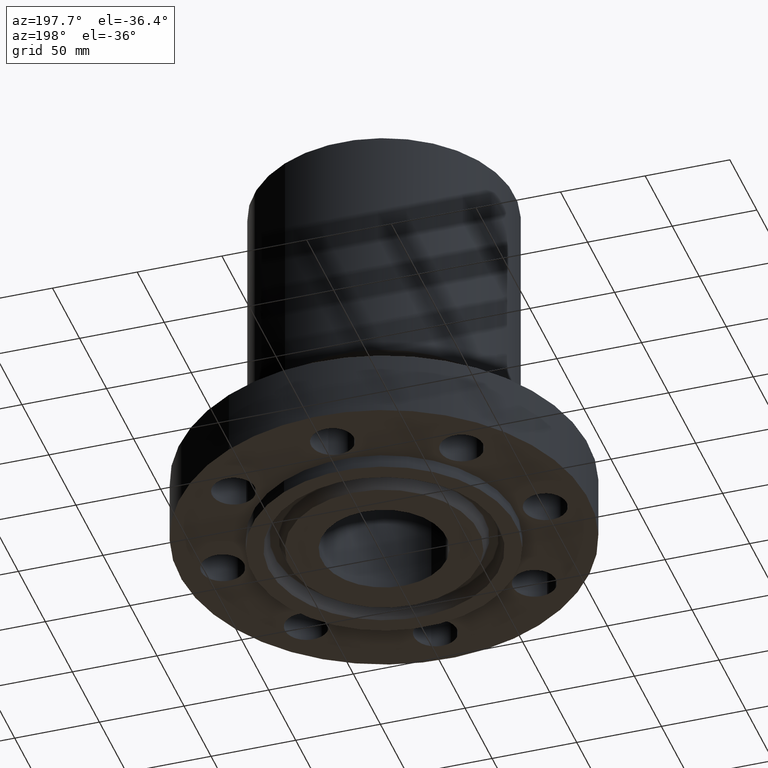
[diagram: clean part render]
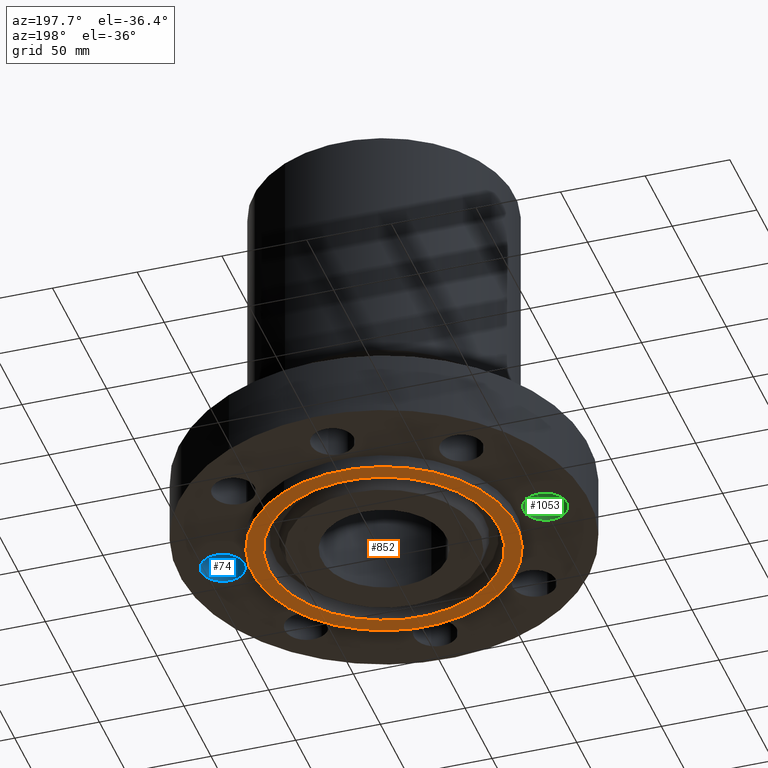
[diagram: same view with three faces highlighted in distinct colors, each labeled with its STEP entity id]
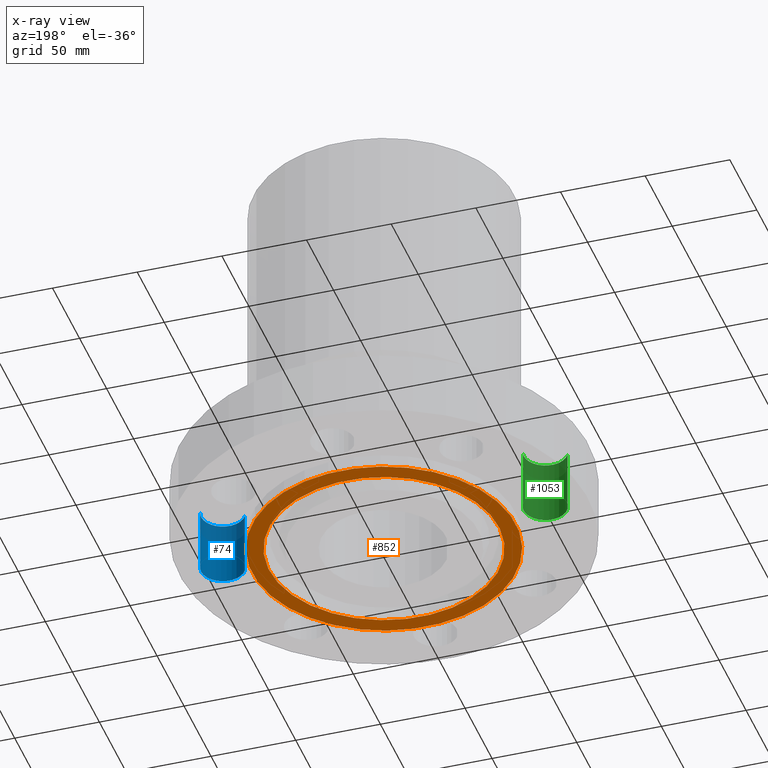
[diagram: x-ray of the same camera — body ghosted, the three highlighted faces saturated]
A machine part, auxiliary view with three faces highlighted in distinct colors.
The next image is the same camera in x-ray (body ghosted, the three faces saturated) — at least one of them is partly hidden behind the body in this view.
Their STEP definitions:

[orange] entity #852 — the highlighted planar face has unit normal (0, 0, -1).
#610=AXIS2_PLACEMENT_3D('Plane Axis2P3D',#607,#608,#609) ;
#801=AXIS2_PLACEMENT_3D('Circle Axis2P3D',#799,#800,$) ;
#820=AXIS2_PLACEMENT_3D('Circle Axis2P3D',#818,#819,$) ;
#832=AXIS2_PLACEMENT_3D('Circle Axis2P3D',#830,#831,$) ;
#841=AXIS2_PLACEMENT_3D('Circle Axis2P3D',#839,#840,$) ;
#607=CARTESIAN_POINT('Axis2P3D Location',(0.,2.20300000001,-0.313000000001)) ;
#796=CARTESIAN_POINT('Vertex',(-1.28102503916,-2.34490060538,-0.313000000001)) ;
#799=CARTESIAN_POINT('Axis2P3D Location',(0.,0.,-0.313000000001)) ;
#803=CARTESIAN_POINT('Vertex',(1.28102503916,2.34490060538,-0.313000000001)) ;
#818=CARTESIAN_POINT('Axis2P3D Location',(0.,0.,-0.313000000001)) ;
#830=CARTESIAN_POINT('Axis2P3D Location',(0.,0.,-0.313000000001)) ;
#834=CARTESIAN_POINT('Vertex',(-1.46824071198,-2.6875965958,-0.313000000001)) ;
#836=CARTESIAN_POINT('Vertex',(1.46824071198,2.6875965958,-0.313000000001)) ;
#839=CARTESIAN_POINT('Axis2P3D Location',(0.,0.,-0.313000000001)) ;
#608=DIRECTION('Axis2P3D Direction',(0.,0.,-0.0393700787402)) ;
#609=DIRECTION('Axis2P3D XDirection',(0.0393700787402,0.,0.)) ;
#800=DIRECTION('Axis2P3D Direction',(0.,0.,-0.0393700787402)) ;
#819=DIRECTION('Axis2P3D Direction',(0.,0.,-0.0393700787402)) ;
#831=DIRECTION('Axis2P3D Direction',(0.,0.,-0.0393700787402)) ;
#840=DIRECTION('Axis2P3D Direction',(0.,0.,-0.0393700787402)) ;
#845=ORIENTED_EDGE('',*,*,#838,.T.) ;
#846=ORIENTED_EDGE('',*,*,#843,.T.) ;
#849=ORIENTED_EDGE('',*,*,#822,.F.) ;
#850=ORIENTED_EDGE('',*,*,#805,.F.) ;
#851=FACE_BOUND('',#848,.T.) ;
#852=ADVANCED_FACE('PartBody',(#847,#851),#611,.T.) ;
#802=CIRCLE('generated circle',#801,2.67200000001) ;
#821=CIRCLE('generated circle',#820,2.67200000001) ;
#833=CIRCLE('generated circle',#832,3.06250000001) ;
#842=CIRCLE('generated circle',#841,3.06250000001) ;
#805=EDGE_CURVE('',#797,#804,#802,.T.) ;
#822=EDGE_CURVE('',#804,#797,#821,.T.) ;
#838=EDGE_CURVE('',#835,#837,#833,.T.) ;
#843=EDGE_CURVE('',#837,#835,#842,.T.) ;
#844=EDGE_LOOP('',(#845,#846)) ;
#848=EDGE_LOOP('',(#849,#850)) ;
#847=FACE_OUTER_BOUND('',#844,.T.) ;
#611=PLANE('',#610) ;
#797=VERTEX_POINT('',#796) ;
#804=VERTEX_POINT('',#803) ;
#835=VERTEX_POINT('',#834) ;
#837=VERTEX_POINT('',#836) ;

[blue] entity #74 — the highlighted cylindrical surface (edge-blend (fillet) strip) has radius 12.7 mm, axis along (0, -0, 1).
#38=AXIS2_PLACEMENT_3D('Cylinder Axis2P3D',#35,#36,#37) ;
#51=AXIS2_PLACEMENT_3D('Circle Axis2P3D',#49,#50,$) ;
#65=AXIS2_PLACEMENT_3D('Circle Axis2P3D',#63,#64,$) ;
#35=CARTESIAN_POINT('Axis2P3D Location',(3.75000000002,0.,0.00393700787402)) ;
#40=CARTESIAN_POINT('Line Origine',(3.31120871907,-0.239712769303,0.750000000003)) ;
#44=CARTESIAN_POINT('Vertex',(3.31120871907,-0.239712769303,1.50000000001)) ;
#46=CARTESIAN_POINT('Vertex',(3.31120871907,-0.239712769303,2.2401153548E-016)) ;
#49=CARTESIAN_POINT('Axis2P3D Location',(3.75000000002,0.,1.50000000001)) ;
#53=CARTESIAN_POINT('Vertex',(4.18879128096,0.239712769303,1.50000000001)) ;
#56=CARTESIAN_POINT('Line Origine',(4.18879128096,0.239712769303,0.750000000003)) ;
#60=CARTESIAN_POINT('Vertex',(4.18879128096,0.239712769303,2.2401153548E-016)) ;
#63=CARTESIAN_POINT('Axis2P3D Location',(3.75000000002,0.,0.)) ;
#36=DIRECTION('Axis2P3D Direction',(0.,-0.,0.0393700787402)) ;
#37=DIRECTION('Axis2P3D XDirection',(0.0345504945626,0.0188750212049,0.)) ;
#41=DIRECTION('Vector Direction',(0.,0.,0.0393700787402)) ;
#50=DIRECTION('Axis2P3D Direction',(0.,-0.,0.0393700787402)) ;
#57=DIRECTION('Vector Direction',(0.,0.,0.0393700787402)) ;
#64=DIRECTION('Axis2P3D Direction',(0.,-0.,0.0393700787402)) ;
#42=VECTOR('Line Direction',#41,0.0393700787402) ;
#58=VECTOR('Line Direction',#57,0.0393700787402) ;
#69=ORIENTED_EDGE('',*,*,#48,.F.) ;
#70=ORIENTED_EDGE('',*,*,#55,.F.) ;
#71=ORIENTED_EDGE('',*,*,#62,.T.) ;
#72=ORIENTED_EDGE('',*,*,#67,.T.) ;
#74=ADVANCED_FACE('PartBody',(#73),#39,.F.) ;
#52=CIRCLE('generated circle',#51,0.500000000002) ;
#66=CIRCLE('generated circle',#65,0.500000000002) ;
#39=CYLINDRICAL_SURFACE('generated cylinder',#38,0.500000000002) ;
#48=EDGE_CURVE('',#45,#47,#43,.F.) ;
#55=EDGE_CURVE('',#54,#45,#52,.F.) ;
#62=EDGE_CURVE('',#54,#61,#59,.F.) ;
#67=EDGE_CURVE('',#61,#47,#66,.F.) ;
#68=EDGE_LOOP('',(#69,#70,#71,#72)) ;
#73=FACE_OUTER_BOUND('',#68,.T.) ;
#43=LINE('Line',#40,#42) ;
#59=LINE('Line',#56,#58) ;
#45=VERTEX_POINT('',#44) ;
#47=VERTEX_POINT('',#46) ;
#54=VERTEX_POINT('',#53) ;
#61=VERTEX_POINT('',#60) ;

[green] entity #1053 — the highlighted cylindrical surface (edge-blend (fillet) strip) has radius 12.7 mm, axis along (0, 0, 1).
#190=AXIS2_PLACEMENT_3D('Circle Axis2P3D',#188,#189,$) ;
#1014=AXIS2_PLACEMENT_3D('Cylinder Axis2P3D',#1011,#1012,#1013) ;
#1044=AXIS2_PLACEMENT_3D('Circle Axis2P3D',#1042,#1043,$) ;
#183=CARTESIAN_POINT('Vertex',(-4.18879128096,-0.239712769303,0.)) ;
#185=CARTESIAN_POINT('Vertex',(-3.31120871907,0.239712769303,0.)) ;
#188=CARTESIAN_POINT('Axis2P3D Location',(-3.75000000002,-5.59482469102E-016,0.)) ;
#1011=CARTESIAN_POINT('Axis2P3D Location',(-3.75000000002,-4.59242549682E-016,0.00393700787402)) ;
#1016=CARTESIAN_POINT('Line Origine',(-3.31120871907,0.239712769303,0.750000000003)) ;
#1020=CARTESIAN_POINT('Vertex',(-3.31120871907,0.239712769303,1.50000000001)) ;
#1027=CARTESIAN_POINT('Vertex',(-4.18879128096,-0.239712769303,1.50000000001)) ;
#1030=CARTESIAN_POINT('Line Origine',(-4.18879128096,-0.239712769303,0.750000000003)) ;
#1042=CARTESIAN_POINT('Axis2P3D Location',(-3.75000000002,-4.59242549682E-016,1.50000000001)) ;
#189=DIRECTION('Axis2P3D Direction',(0.,0.,-0.0393700787402)) ;
#1012=DIRECTION('Axis2P3D Direction',(0.,0.,0.0393700787402)) ;
#1013=DIRECTION('Axis2P3D XDirection',(-0.0345504945626,-0.0188750212049,0.)) ;
#1017=DIRECTION('Vector Direction',(0.,0.,0.0393700787402)) ;
#1031=DIRECTION('Vector Direction',(0.,0.,0.0393700787402)) ;
#1043=DIRECTION('Axis2P3D Direction',(0.,0.,0.0393700787402)) ;
#1018=VECTOR('Line Direction',#1017,0.0393700787402) ;
#1032=VECTOR('Line Direction',#1031,0.0393700787402) ;
#1048=ORIENTED_EDGE('',*,*,#1034,.F.) ;
#1049=ORIENTED_EDGE('',*,*,#1046,.F.) ;
#1050=ORIENTED_EDGE('',*,*,#1022,.T.) ;
#1051=ORIENTED_EDGE('',*,*,#192,.T.) ;
#1053=ADVANCED_FACE('PartBody',(#1052),#1015,.F.) ;
#191=CIRCLE('generated circle',#190,0.500000000002) ;
#1045=CIRCLE('generated circle',#1044,0.500000000002) ;
#1015=CYLINDRICAL_SURFACE('generated cylinder',#1014,0.500000000002) ;
#192=EDGE_CURVE('',#186,#184,#191,.T.) ;
#1022=EDGE_CURVE('',#1021,#186,#1019,.F.) ;
#1034=EDGE_CURVE('',#1028,#184,#1033,.F.) ;
#1046=EDGE_CURVE('',#1021,#1028,#1045,.F.) ;
#1047=EDGE_LOOP('',(#1048,#1049,#1050,#1051)) ;
#1052=FACE_OUTER_BOUND('',#1047,.T.) ;
#1019=LINE('Line',#1016,#1018) ;
#1033=LINE('Line',#1030,#1032) ;
#184=VERTEX_POINT('',#183) ;
#186=VERTEX_POINT('',#185) ;
#1021=VERTEX_POINT('',#1020) ;
#1028=VERTEX_POINT('',#1027) ;